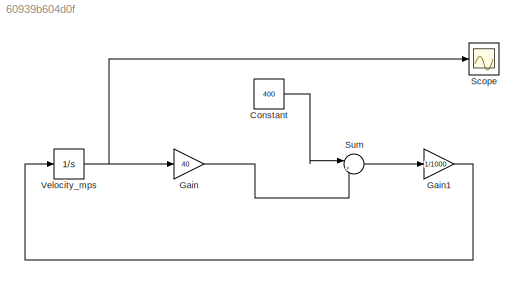
MODEL slx_60939b604d0f
KIND model
CONFIG AbsTol = auto
CONFIG EnableMultiTasking = off
CONFIG FixedStep = auto
CONFIG MaxStep = auto
CONFIG MinStep = auto
CONFIG RelTol = 1e-3
CONFIG SampleTimeConstraint = Unconstrained
CONFIG SolverName = VariableStepAuto
CONFIG StartTime = 0.0
CONFIG StopTime = 10.0
BLOCK [Constant] Constant
  Value = 400
BLOCK [Gain] Gain
  Gain = 40
BLOCK [Gain] Gain1
  Gain = 1/1000
BLOCK [Scope] Scope
  Floating = off
  GraphicalSettings = {"GraphicalSettings":{"LegacySettings":true,"Style":{"Style":{"PlotType":"Auto"}}}}
  NumInputPorts = 1
  WasSavedAsWebScope = on
BLOCK [Sum] Sum
  Inputs = |+-
BLOCK [Integrator] Velocity_mps
LINE Constant:1 -> Sum:1
LINE Gain1:1 -> Velocity_mps:1
LINE Gain:1 -> Sum:2
LINE Sum:1 -> Gain1:1
NET Velocity_mps:1 -> Gain:1, Scope:1
note: NET lines group one-source signal fan-out (src -> all destinations, sorted); 1:1 wires keep LINE
